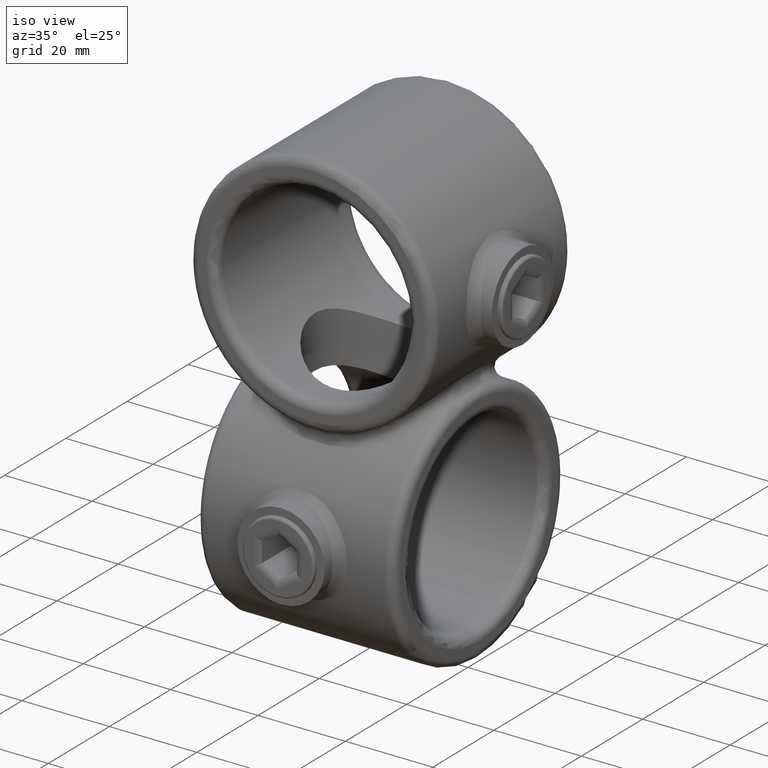
[diagram: clean part render]
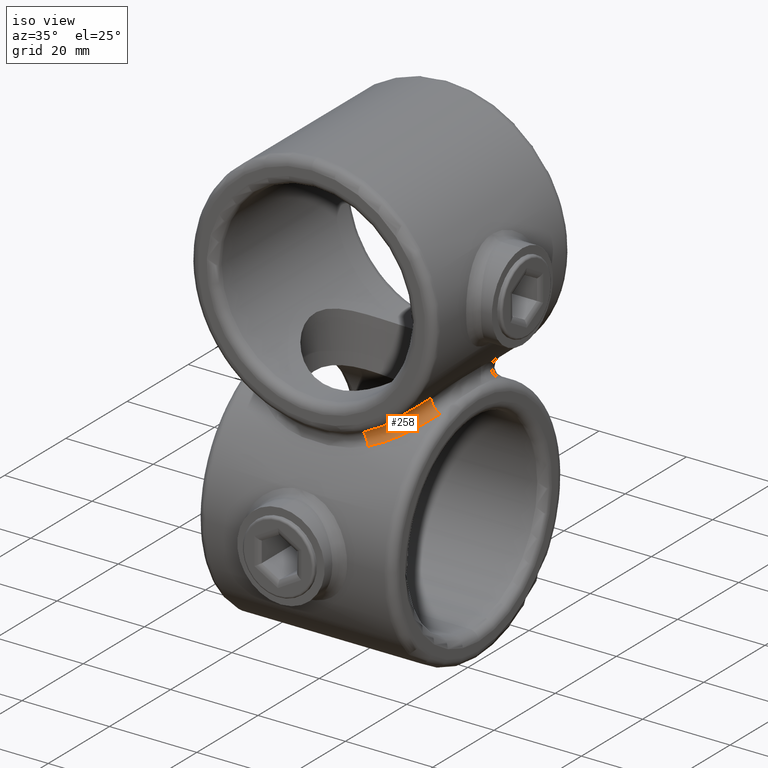
[diagram: same view with one face highlighted and labeled with its STEP entity id]
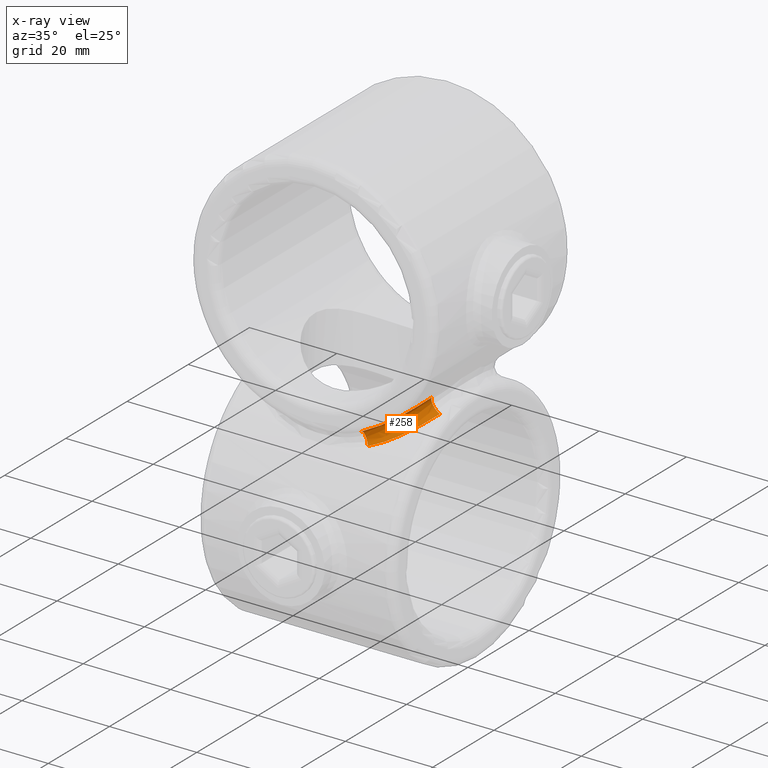
[diagram: x-ray of the same camera — body ghosted, the highlighted face saturated]
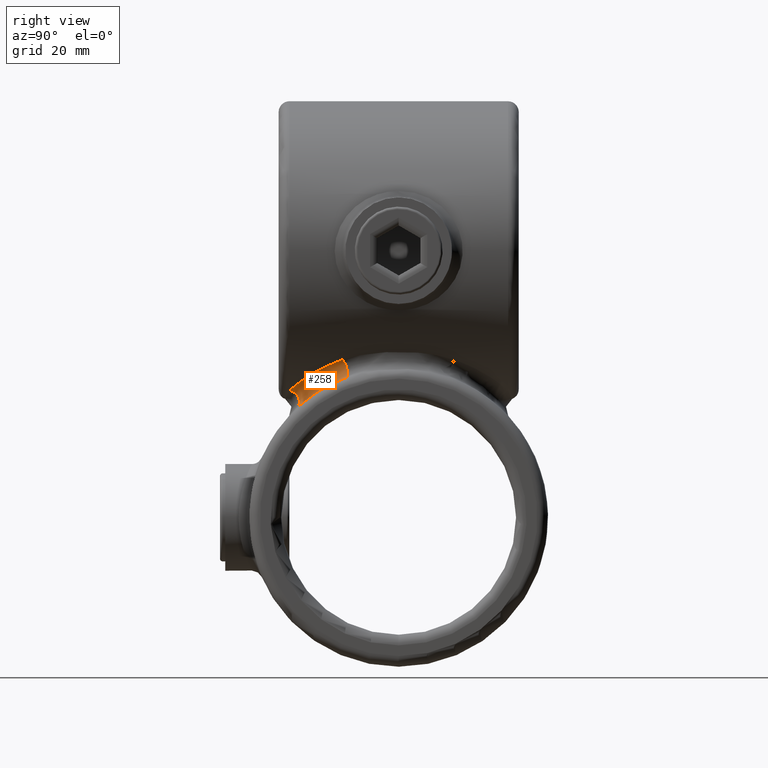
[diagram: same view with one face highlighted and labeled with its STEP entity id]
A machine part, iso view. The second image highlights one B-rep face of the part: STEP entity #258.
The next image is the same camera in x-ray: the body ghosted, the highlighted face saturated — about 0% of this face is hidden behind the body in this view.
A second angle (right view) of the same face is appended — the face is thin or edge-on in the first view.
In plain terms, the highlighted face is a freeform B-spline surface patch.
Its self-contained STEP definition (entity closure, byte-faithful):
#77 = B_SPLINE_CURVE_WITH_KNOTS ( 'NONE', 3,
 ( #2500, #650, #328, #599, #2760, #897, #3064, #1945, #952, #1589, #3159, #1606, #3464, #3435 ),
 .UNSPECIFIED., .F., .F.,
 ( 4, 2, 2, 2, 2, 2, 4 ),
 ( 0.04686888564588231887, 0.05069626258438836991, 0.05260995105364139196, 0.05452363952289442095, 0.05643732799214744300, 0.05835101646140046505, 0.06217839339990651609 ),
 .UNSPECIFIED. ) ;
#118 = CARTESIAN_POINT ( 'NONE',  ( 8.298292718235638077, -16.17799585300446807, -26.79100883852732551 ) ) ;
#131 = CARTESIAN_POINT ( 'NONE',  ( 14.03472270663429100, -17.42501698005478872, -28.08179972461463692 ) ) ;
#192 = CARTESIAN_POINT ( 'NONE',  ( 15.77125855297478019, -9.192455604451172491, -23.47230612063046706 ) ) ;
#194 = FACE_OUTER_BOUND ( 'NONE', #1526, .T. ) ;
#236 = CARTESIAN_POINT ( 'NONE',  ( 17.96025111392230400, -14.02109312120494344, -25.76215994014139454 ) ) ;
#250 = CARTESIAN_POINT ( 'NONE',  ( 16.28878211440610357, -15.65936850321715923, -22.77850787078737937 ) ) ;
#258 = ADVANCED_FACE ( 'NONE', ( #194 ), #3602, .F. ) ;
#262 = CARTESIAN_POINT ( 'NONE',  ( 15.92139331692917281, -16.10311059781384913, -23.03755608734465454 ) ) ;
#328 = CARTESIAN_POINT ( 'NONE',  ( 19.46626546160636195, -11.94735469227315683, -24.65346141539060199 ) ) ;
#329 = CARTESIAN_POINT ( 'NONE',  ( 10.51520857524741892, -19.13333333333322628, -29.55701696044436133 ) ) ;
#366 = DIRECTION ( 'NONE',  ( -0.3712835051035825451, 0.9285195522109365163, 0.000000000000000000 ) ) ;
#438 = CARTESIAN_POINT ( 'NONE',  ( 10.88864620545160022, -20.03967490055404355, -25.82157091555122008 ) ) ;
#461 = CARTESIAN_POINT ( 'NONE',  ( 10.02034018057883635, -15.30328220241288051, -26.24042184784323339 ) ) ;
#486 = CARTESIAN_POINT ( 'NONE',  ( 19.13333333333319075, -10.51520857524750063, -20.44298303955567420 ) ) ;
#541 = VERTEX_POINT ( 'NONE', #2183 ) ;
#599 = CARTESIAN_POINT ( 'NONE',  ( 18.46204116343548307, -13.39698085410465289, -25.40696278240989159 ) ) ;
#650 = CARTESIAN_POINT ( 'NONE',  ( 20.02882759566506721, -10.91396505669266581, -24.18790464625161007 ) ) ;
#711 = EDGE_CURVE ( 'NONE', #2336, #1085, #77, .T. ) ;
#722 = CARTESIAN_POINT ( 'NONE',  ( 12.75480617117102433, -18.19084325273549752, -28.69946613748800601 ) ) ;
#804 = CARTESIAN_POINT ( 'NONE',  ( 17.26174594481345181, -14.29248319022060620, -22.04711582366666534 ) ) ;
#816 = CARTESIAN_POINT ( 'NONE',  ( 15.71861730704511295, -16.24140943847082497, -27.18760875938681210 ) ) ;
#842 = CARTESIAN_POINT ( 'NONE',  ( 17.30618495178273619, -14.23682902225847791, -22.01468055209701191 ) ) ;
#897 = CARTESIAN_POINT ( 'NONE',  ( 17.34450929141322817, -14.73214974937554267, -26.18359092592006832 ) ) ;
#908 = AXIS2_PLACEMENT_3D ( 'NONE', #978, #3445, #3460 ) ;
#952 = CARTESIAN_POINT ( 'NONE',  ( 15.65554919198881123, -16.29184550523930852, -27.22368073626742557 ) ) ;
#978 = CARTESIAN_POINT ( 'NONE',  ( 20.49999999999976197, -10.51520857524744557, -21.90319611380962783 ) ) ;
#1052 = CARTESIAN_POINT ( 'NONE',  ( 11.56852437446396209, -14.20376319785632369, -25.62697874833067146 ) ) ;
#1073 = CARTESIAN_POINT ( 'NONE',  ( 18.14205894692876342, -13.79777275938319292, -25.63424454696399124 ) ) ;
#1085 = VERTEX_POINT ( 'NONE', #329 ) ;
#1089 = CARTESIAN_POINT ( 'NONE',  ( 17.00128376680399001, -15.08741742211345205, -26.40782154445675900 ) ) ;
#1103 = CARTESIAN_POINT ( 'NONE',  ( 18.66602596515627255, -13.10417906264731691, -25.25423315931740831 ) ) ;
#1118 = CARTESIAN_POINT ( 'NONE',  ( 13.29190474901891328, -12.63815256677118803, -24.84368425495900468 ) ) ;
#1120 = CARTESIAN_POINT ( 'NONE',  ( 13.84897530233974017, -18.10104098910055725, -24.33671236575946040 ) ) ;
#1145 = CARTESIAN_POINT ( 'NONE',  ( 11.94311425330973009, -19.46866144511326269, -25.34849131551205303 ) ) ;
#1326 = ORIENTED_EDGE ( 'NONE', *, *, #711, .F. ) ;
#1331 = CARTESIAN_POINT ( 'NONE',  ( 14.28719916847182070, -17.26516280770919920, -27.95555875231960385 ) ) ;
#1342 = CARTESIAN_POINT ( 'NONE',  ( 13.09907452616204537, -18.66966104996660647, -24.74846639132949022 ) ) ;
#1369 = CARTESIAN_POINT ( 'NONE',  ( 18.70271837729501740, -11.66902769371364457, -20.84601128040755214 ) ) ;
#1386 = CARTESIAN_POINT ( 'NONE',  ( 13.60505169218071231, -12.29548027161216517, -24.68686325771393442 ) ) ;
#1403 = CARTESIAN_POINT ( 'NONE',  ( 19.48792080327843479, -11.90852957818278846, -24.63572018930639373 ) ) ;
#1431 = CARTESIAN_POINT ( 'NONE',  ( 20.03861621889394584, -10.89111728981581884, -24.17935388598856861 ) ) ;
#1471 = CARTESIAN_POINT ( 'NONE',  ( 15.14128866748173863, -16.94736115872449389, -23.55761306070495920 ) ) ;
#1526 = EDGE_LOOP ( 'NONE', ( #2386, #2277, #2781, #1326 ) ) ;
#1589 = CARTESIAN_POINT ( 'NONE',  ( 14.72288141062136013, -16.98364705225586491, -27.73476517136046127 ) ) ;
#1606 = CARTESIAN_POINT ( 'NONE',  ( 12.71081044481687172, -18.21218651847461700, -28.71819553612979092 ) ) ;
#1643 = CARTESIAN_POINT ( 'NONE',  ( 10.99804410708516578, -14.62964306328436237, -25.85988872059943589 ) ) ;
#1666 = CARTESIAN_POINT ( 'NONE',  ( 13.79338827448474802, -18.14556707192071983, -24.36824083261477369 ) ) ;
#1680 = CARTESIAN_POINT ( 'NONE',  ( 14.77863029415830987, -16.93586260052317627, -27.70157416597892919 ) ) ;
#1706 = CARTESIAN_POINT ( 'NONE',  ( 15.30135627339538829, -10.02365289105804891, -23.76074520250649513 ) ) ;
#1735 = CARTESIAN_POINT ( 'NONE',  ( 11.75256783872823263, -14.05739461745523933, -25.54901985726369418 ) ) ;
#1751 = CARTESIAN_POINT ( 'NONE',  ( 16.93258835053058320, -14.78332795654884357, -22.30091121360139539 ) ) ;
#1753 = CARTESIAN_POINT ( 'NONE',  ( 18.71263832980463349, -11.64244749565360593, -20.83672683509691836 ) ) ;
#1778 = CARTESIAN_POINT ( 'NONE',  ( 14.72857631703738512, -17.34786909482103923, -23.81862802030708082 ) ) ;
#1865 = B_SPLINE_CURVE_WITH_KNOTS ( 'NONE', 3,
 ( #3638, #3938, #1145, #2382, #3019, #1120, #3295, #1778, #1471, #262, #250, #2072, #842, #3648, #1753, #3334 ),
 .UNSPECIFIED., .F., .F.,
 ( 4, 2, 2, 2, 2, 2, 2, 4 ),
 ( 0.08345779520400703477, 0.08728473860576940746, 0.08824147445621000063, 0.08919821030665059380, 0.09111168200753178015, 0.09302515370841295261, 0.09493862540929413896, 0.09876556881105649777 ),
 .UNSPECIFIED. ) ;
#1945 = CARTESIAN_POINT ( 'NONE',  ( 16.09952736386711791, -15.92446960003264955, -26.96457249893986230 ) ) ;
#1978 = CARTESIAN_POINT ( 'NONE',  ( 10.51520857524742070, -19.13333333333322628, -29.55701696044436133 ) ) ;
#1993 = CARTESIAN_POINT ( 'NONE',  ( 14.01693845425911533, -17.96369925996907213, -24.24024504008692205 ) ) ;
#2023 = CARTESIAN_POINT ( 'NONE',  ( 15.01814834378056318, -16.76611930923970917, -27.57357837339954187 ) ) ;
#2039 = CARTESIAN_POINT ( 'NONE',  ( 16.16150165096253133, -15.87097845552098008, -26.92765526411153587 ) ) ;
#2053 = CARTESIAN_POINT ( 'NONE',  ( 18.18872608271888325, -12.75913883363543988, -21.30238685578735414 ) ) ;
#2072 = CARTESIAN_POINT ( 'NONE',  ( 16.98045709843477624, -14.72748988975370921, -22.26766535401353764 ) ) ;
#2085 = CIRCLE ( 'NONE', #908, 2.000000000000000444 ) ;
#2137 = AXIS2_PLACEMENT_3D ( 'NONE', #2852, #3745, #366 ) ;
#2183 = CARTESIAN_POINT ( 'NONE',  ( 19.13333333333321917, -10.51520857524744024, -20.44298303955565288 ) ) ;
#2192 = EDGE_CURVE ( 'NONE', #2336, #541, #2085, .T. ) ;
#2242 = CARTESIAN_POINT ( 'NONE',  ( 20.49999999999999645, -9.814194670230948603, -23.77631637288898503 ) ) ;
#2277 = ORIENTED_EDGE ( 'NONE', *, *, #3048, .F. ) ;
#2291 = CARTESIAN_POINT ( 'NONE',  ( 11.19143843293269391, -14.48977596215867791, -25.78234797401462686 ) ) ;
#2334 = CARTESIAN_POINT ( 'NONE',  ( 15.86786484888710191, -16.16509009498410876, -23.07448821112101811 ) ) ;
#2336 = VERTEX_POINT ( 'NONE', #2242 ) ;
#2349 = CARTESIAN_POINT ( 'NONE',  ( 14.48679471976162603, -11.19548854366969515, -24.21929228071347495 ) ) ;
#2382 = CARTESIAN_POINT ( 'NONE',  ( 13.15008639109546884, -18.63321019862734573, -24.72143254919179967 ) ) ;
#2386 = ORIENTED_EDGE ( 'NONE', *, *, #2192, .T. ) ;
#2409 = EDGE_CURVE ( 'NONE', #1085, #3005, #3260, .T. ) ;
#2500 = CARTESIAN_POINT ( 'NONE',  ( 20.49999999999999645, -9.814194670230948603, -23.77631637288898503 ) ) ;
#2633 = CARTESIAN_POINT ( 'NONE',  ( 18.49472779808270317, -13.33965097760163054, -25.38044915697073733 ) ) ;
#2680 = CARTESIAN_POINT ( 'NONE',  ( 14.20093378710454601, -11.57213255987742784, -24.37453703531819826 ) ) ;
#2691 = CARTESIAN_POINT ( 'NONE',  ( 15.08406820769498502, -17.00461977390992274, -23.59432193078060891 ) ) ;
#2760 = CARTESIAN_POINT ( 'NONE',  ( 18.10281487695184310, -13.85937590129061547, -25.66534822421600026 ) ) ;
#2781 = ORIENTED_EDGE ( 'NONE', *, *, #2409, .F. ) ;
#2852 = CARTESIAN_POINT ( 'NONE',  ( 10.51520857524741892, -20.49999999999988631, -28.09680388619038993 ) ) ;
#2870 = CARTESIAN_POINT ( 'NONE',  ( 9.190394164185905268, -15.77219626204150948, -26.52830093660856292 ) ) ;
#2884 = CARTESIAN_POINT ( 'NONE',  ( 13.33471922397003873, -18.49838872261396716, -24.62222541901708794 ) ) ;
#2952 = CARTESIAN_POINT ( 'NONE',  ( 16.17799585300443255, -8.298292718235696697, -23.20899116147270291 ) ) ;
#2980 = CARTESIAN_POINT ( 'NONE',  ( 17.42162423423110340, -14.04019185286936811, -21.92089982603050302 ) ) ;
#2994 = CARTESIAN_POINT ( 'NONE',  ( 14.05462609893898929, -11.75599179739657707, -24.45244355323715979 ) ) ;
#3005 = VERTEX_POINT ( 'NONE', #3237 ) ;
#3019 = CARTESIAN_POINT ( 'NONE',  ( 13.38766743335309251, -18.45905500285123324, -24.59349601810328423 ) ) ;
#3048 = EDGE_CURVE ( 'NONE', #3005, #541, #1865, .T. ) ;
#3064 = CARTESIAN_POINT ( 'NONE',  ( 16.94400774573430013, -15.14462006667237226, -26.44453067257826362 ) ) ;
#3159 = CARTESIAN_POINT ( 'NONE',  ( 14.23133366576079872, -17.30967218829247400, -27.98807179074529472 ) ) ;
#3181 = CARTESIAN_POINT ( 'NONE',  ( 11.66638000705070155, -18.70370651611170842, -29.15491355474604163 ) ) ;
#3206 = CARTESIAN_POINT ( 'NONE',  ( 9.814194670230925510, -20.49999999999988276, -26.22368362711102918 ) ) ;
#3219 = CARTESIAN_POINT ( 'NONE',  ( 11.90448575987946001, -19.49018919972785469, -25.36613280396192849 ) ) ;
#3234 = CARTESIAN_POINT ( 'NONE',  ( 14.67070948644759021, -17.40151011250854296, -23.85427542601205175 ) ) ;
#3237 = CARTESIAN_POINT ( 'NONE',  ( 9.814194670230925510, -20.49999999999999645, -26.22368362711102918 ) ) ;
#3260 = CIRCLE ( 'NONE', #2137, 1.999999999999998446 ) ;
#3264 = CARTESIAN_POINT ( 'NONE',  ( 12.63536464846402652, -13.29452896580928467, -25.15760981634654314 ) ) ;
#3281 = CARTESIAN_POINT ( 'NONE',  ( 17.39817923990428383, -14.67428935617786756, -26.14793501152753308 ) ) ;
#3293 = CARTESIAN_POINT ( 'NONE',  ( 14.62666598957295427, -11.00223342262044213, -24.14177289401015258 ) ) ;
#3295 = CARTESIAN_POINT ( 'NONE',  ( 14.07339359694786118, -17.91673730568535561, -24.20752141255947620 ) ) ;
#3334 = CARTESIAN_POINT ( 'NONE',  ( 19.13333333333321917, -10.51520857524744024, -20.44298303955565288 ) ) ;
#3435 = CARTESIAN_POINT ( 'NONE',  ( 10.51520857524741892, -19.13333333333322628, -29.55701696044436133 ) ) ;
#3445 = DIRECTION ( 'NONE',  ( 0.3507117937966615084, 0.8770730540271804987, 0.3282439574331306731 ) ) ;
#3460 = DIRECTION ( 'NONE',  ( -0.9285195522109148669, 0.3712835051036368350, 0.000000000000000000 ) ) ;
#3464 = CARTESIAN_POINT ( 'NONE',  ( 11.63997169454482794, -18.71356231950844773, -29.16413796056258434 ) ) ;
#3581 = CARTESIAN_POINT ( 'NONE',  ( 20.49999999999984368, -9.814194670231001894, -23.77631637288900635 ) ) ;
#3602 =( BOUNDED_SURFACE ( )  B_SPLINE_SURFACE ( 3, 2, ( 
 ( #3206, #118, #1978 ),
 ( #438, #2870, #3181 ),
 ( #3219, #461, #722 ),
 ( #1342, #1643, #131 ),
 ( #2884, #2291, #1331 ),
 ( #1666, #1052, #1680 ),
 ( #1993, #1735, #2023 ),
 ( #3234, #3910, #816 ),
 ( #2691, #3264, #2039 ),
 ( #2334, #1118, #1089 ),
 ( #3878, #1386, #3281 ),
 ( #3864, #2994, #236 ),
 ( #1751, #2680, #1073 ),
 ( #804, #2349, #2633 ),
 ( #2980, #3293, #1103 ),
 ( #2053, #1706, #1403 ),
 ( #1369, #192, #1431 ),
 ( #486, #2952, #3581 ) ),
 .UNSPECIFIED., .F., .F., .F. ) 
 B_SPLINE_SURFACE_WITH_KNOTS ( ( 4, 2, 2, 2, 2, 2, 2, 2, 4 ),
 ( 3, 3 ),
 ( 0.08959948823222911585, 0.09353690300510669742, 0.09452125669832608934, 0.09550561039154548126, 0.09747431777798426511, 0.09944302516442304896, 0.1004273788576424409, 0.1014117325508618328, 0.1053491473237394144 ),
 ( 0.000000000000000000, 1.000000000000000000 ),
 .UNSPECIFIED. ) 
 GEOMETRIC_REPRESENTATION_ITEM ( )  RATIONAL_B_SPLINE_SURFACE ( (
 ( 1.000000000000000000, 0.3976250287711917131, 1.000000000000000000),
 ( 1.000000000000000000, 0.3957594443009008200, 1.000000000000000000),
 ( 1.000000000000000000, 0.3940291374872247898, 1.000000000000000000),
 ( 1.000000000000000000, 0.3924860633807700783, 1.000000000000000000),
 ( 1.000000000000000000, 0.3922078739481711374, 1.000000000000000000),
 ( 1.000000000000000000, 0.3917277210143889077, 1.000000000000000000),
 ( 1.000000000000000000, 0.3915249601399907742, 1.000000000000000000),
 ( 1.000000000000000000, 0.3910354624539731927, 1.000000000000000000),
 ( 1.000000000000000000, 0.3908684354358485380, 1.000000000000000000),
 ( 1.000000000000000000, 0.3908675264088574131, 1.000000000000000000),
 ( 1.000000000000000000, 0.3910336418538394865, 1.000000000000000000),
 ( 1.000000000000000000, 0.3915214253815636480, 1.000000000000000000),
 ( 1.000000000000000000, 0.3917235575504720013, 1.000000000000000000),
 ( 1.000000000000000000, 0.3922022933857615690, 1.000000000000000000),
 ( 1.000000000000000000, 0.3924798276550248710, 1.000000000000000000),
 ( 1.000000000000000000, 0.3940225004983079482, 1.000000000000000000),
 ( 1.000000000000000000, 0.3957550600276319996, 1.000000000000000000),
 ( 1.000000000000000000, 0.3976250287711911025, 1.000000000000000000) ) ) 
 REPRESENTATION_ITEM ( '' )  SURFACE ( )  );
#3638 = CARTESIAN_POINT ( 'NONE',  ( 9.814194670230925510, -20.49999999999999645, -26.22368362711102918 ) ) ;
#3648 = CARTESIAN_POINT ( 'NONE',  ( 18.21019287661016861, -12.71492325945121671, -21.28355386164151497 ) ) ;
#3745 = DIRECTION ( 'NONE',  ( 0.8770730540272055897, 0.3507117937966122145, 0.3282439574331159626 ) ) ;
#3864 = CARTESIAN_POINT ( 'NONE',  ( 16.76290103959612310, -15.02259977265199176, -22.42882660682706941 ) ) ;
#3878 = CARTESIAN_POINT ( 'NONE',  ( 16.23830062404006114, -15.72245288175431988, -22.81460167815618334 ) ) ;
#3910 = CARTESIAN_POINT ( 'NONE',  ( 12.29251483811190049, -13.60769037700030459, -25.31447344106742747 ) ) ;
#3938 = CARTESIAN_POINT ( 'NONE',  ( 10.91134179523212211, -20.02995147427172640, -25.81307710745664608 ) ) ;